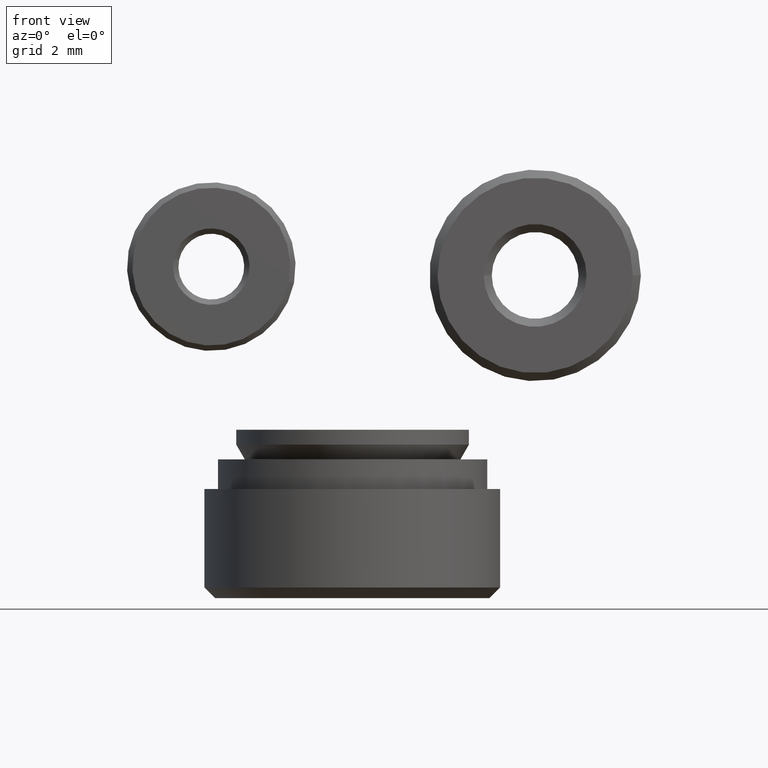
[diagram: clean part render]
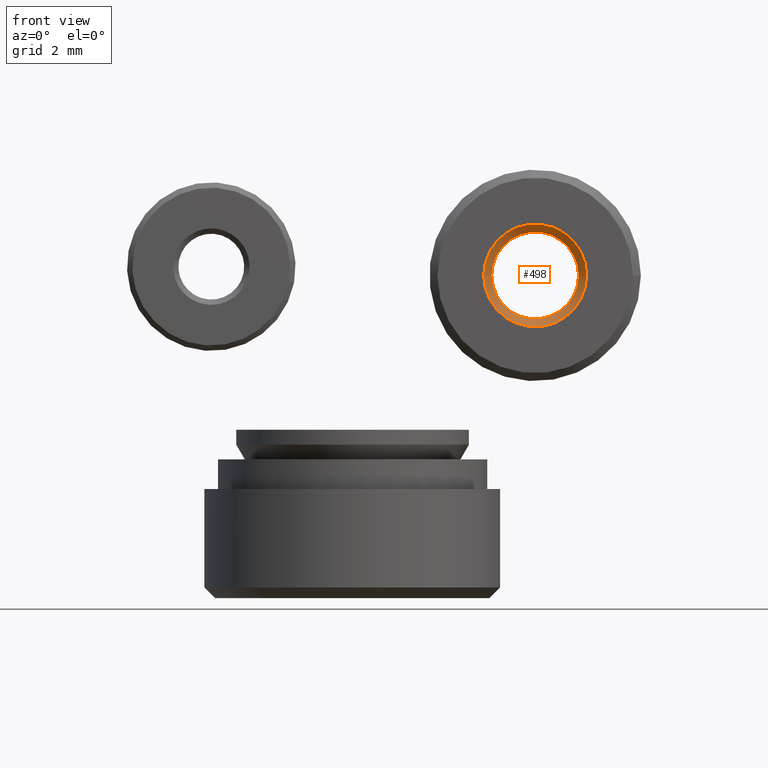
[diagram: same view with one face highlighted and labeled with its STEP entity id]
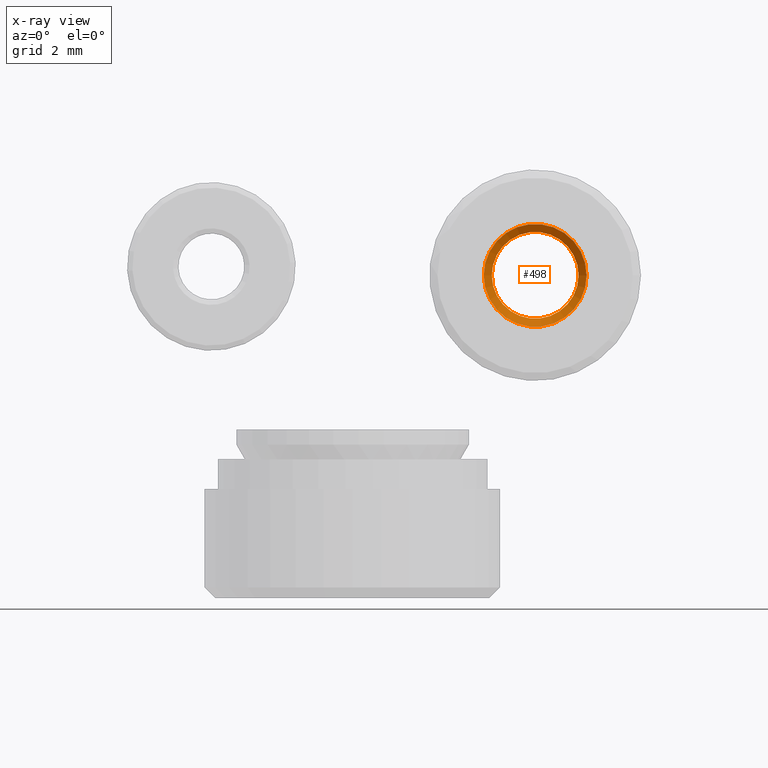
[diagram: x-ray of the same camera — body ghosted, the highlighted face saturated]
A machine part, front view. The second image highlights one B-rep face of the part: STEP entity #498.
The next image is the same camera in x-ray: the body ghosted, the highlighted face saturated — about 0% of this face is hidden behind the body in this view.
In plain terms, the highlighted conical surface has half-angle 45 deg.
Its self-contained STEP definition (entity closure, byte-faithful):
#105=FACE_BOUND('',#224,.T.);
#147=FACE_OUTER_BOUND('',#223,.T.);
#223=EDGE_LOOP('',(#433));
#224=EDGE_LOOP('',(#434));
#269=CIRCLE('',#572,1.621);
#273=CIRCLE('',#579,1.921);
#311=VERTEX_POINT('',#875);
#315=VERTEX_POINT('',#886);
#353=EDGE_CURVE('',#311,#311,#269,.T.);
#357=EDGE_CURVE('',#315,#315,#273,.T.);
#433=ORIENTED_EDGE('',*,*,#353,.T.);
#434=ORIENTED_EDGE('',*,*,#357,.T.);
#461=CONICAL_SURFACE('',#582,1.771,0.785398163397448);
#498=ADVANCED_FACE('',(#147,#105),#461,.F.);
#572=AXIS2_PLACEMENT_3D('',#876,#726,#727);
#579=AXIS2_PLACEMENT_3D('',#887,#740,#741);
#582=AXIS2_PLACEMENT_3D('',#891,#746,#747);
#726=DIRECTION('center_axis',(0.,0.,1.));
#727=DIRECTION('ref_axis',(1.,0.,0.));
#740=DIRECTION('center_axis',(0.,0.,-1.));
#741=DIRECTION('ref_axis',(1.,0.,0.));
#746=DIRECTION('center_axis',(0.,0.,-1.));
#747=DIRECTION('ref_axis',(1.,0.,0.));
#875=CARTESIAN_POINT('',(-1.621,-1.98515246141786E-16,0.3));
#876=CARTESIAN_POINT('Origin',(0.,0.,0.3));
#886=CARTESIAN_POINT('',(-1.921,2.35254650116207E-16,1.38777878078145E-16));
#887=CARTESIAN_POINT('Origin',(0.,0.,1.38777878078145E-16));
#891=CARTESIAN_POINT('Origin',(0.,0.,0.15));